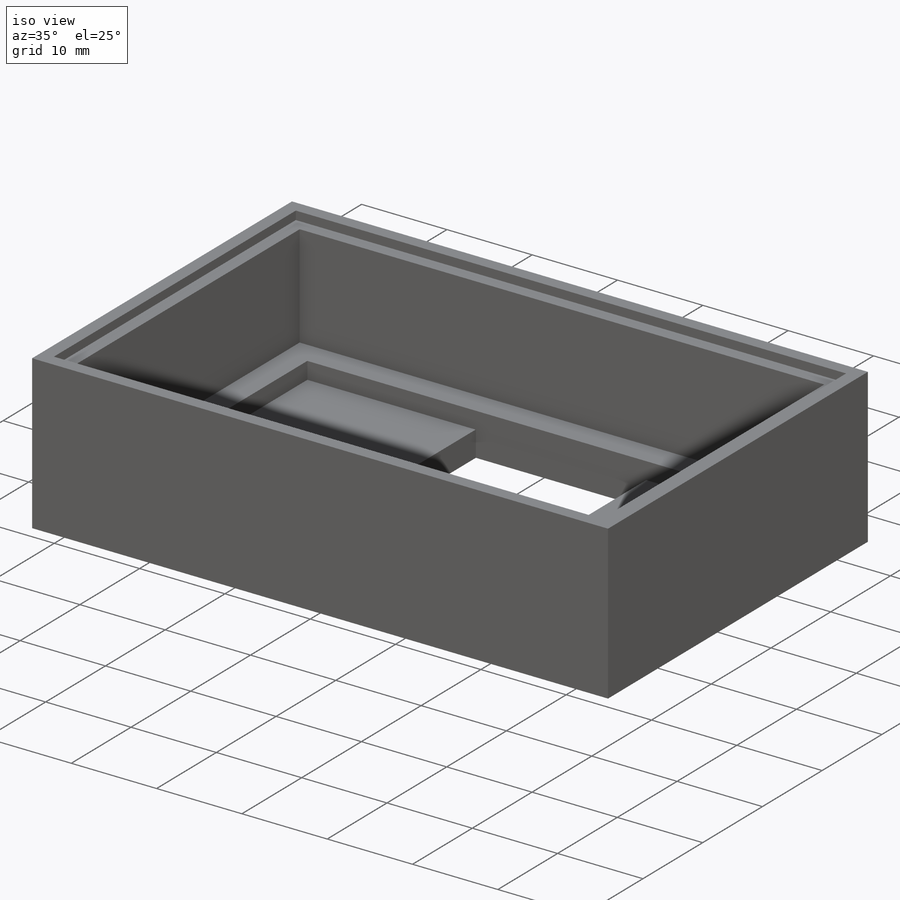
[diagram: iso view]
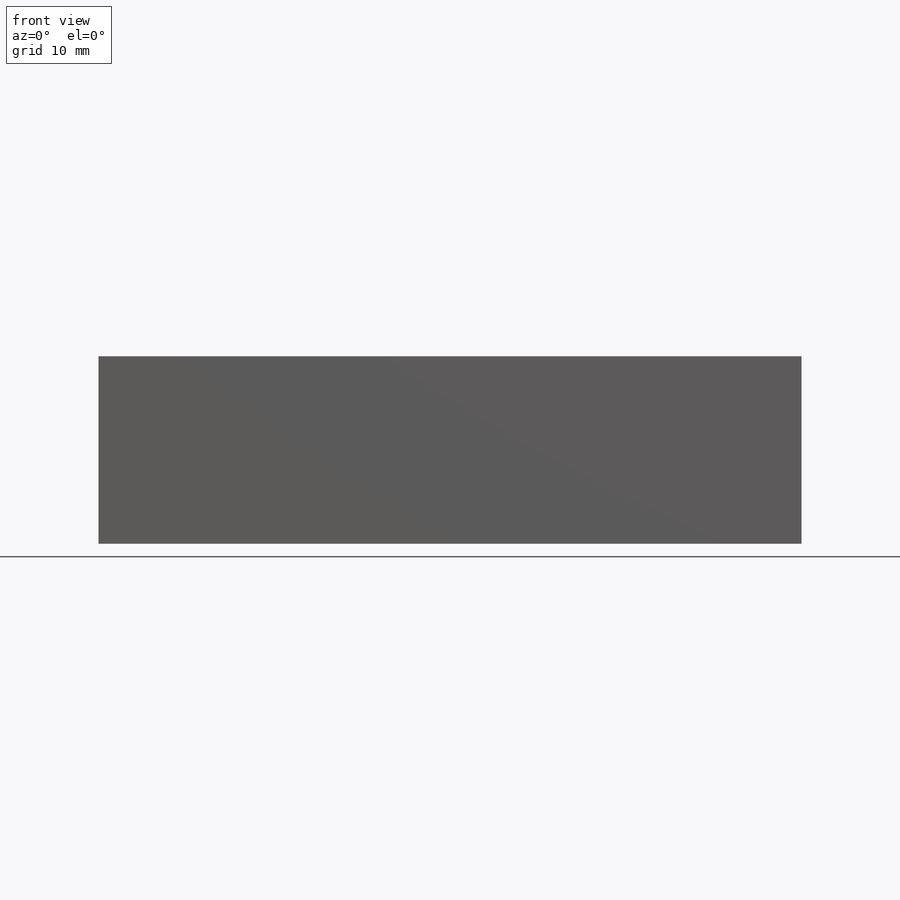
[diagram: front view]
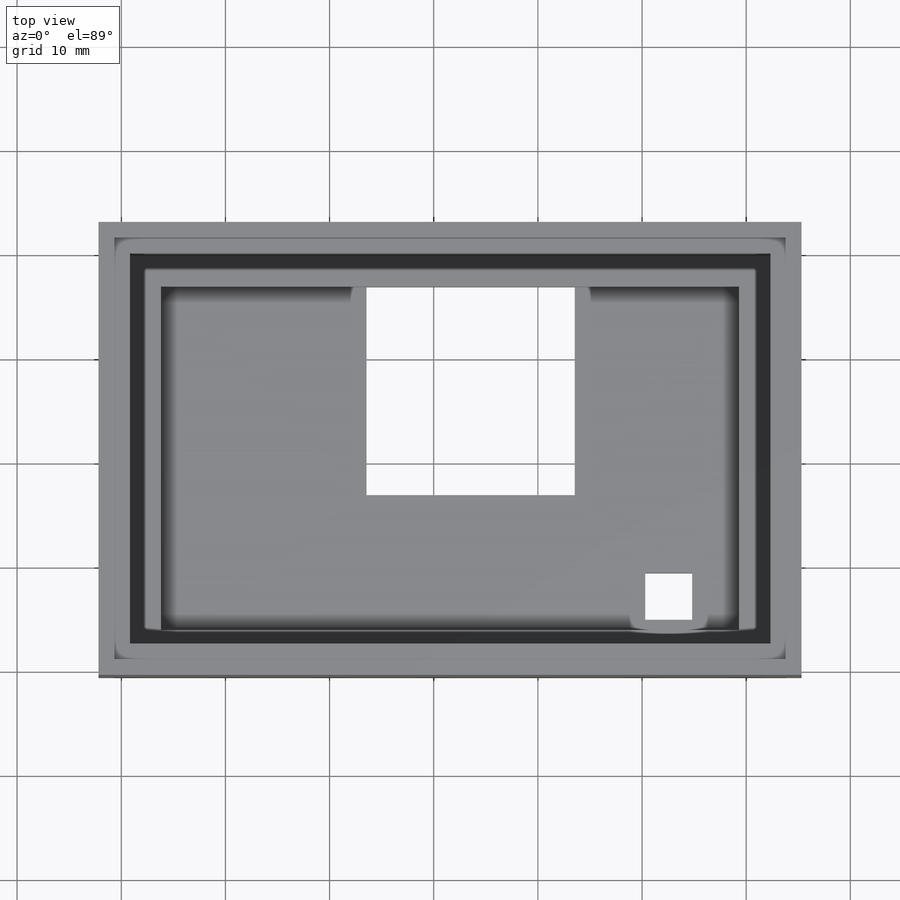
[diagram: top view]
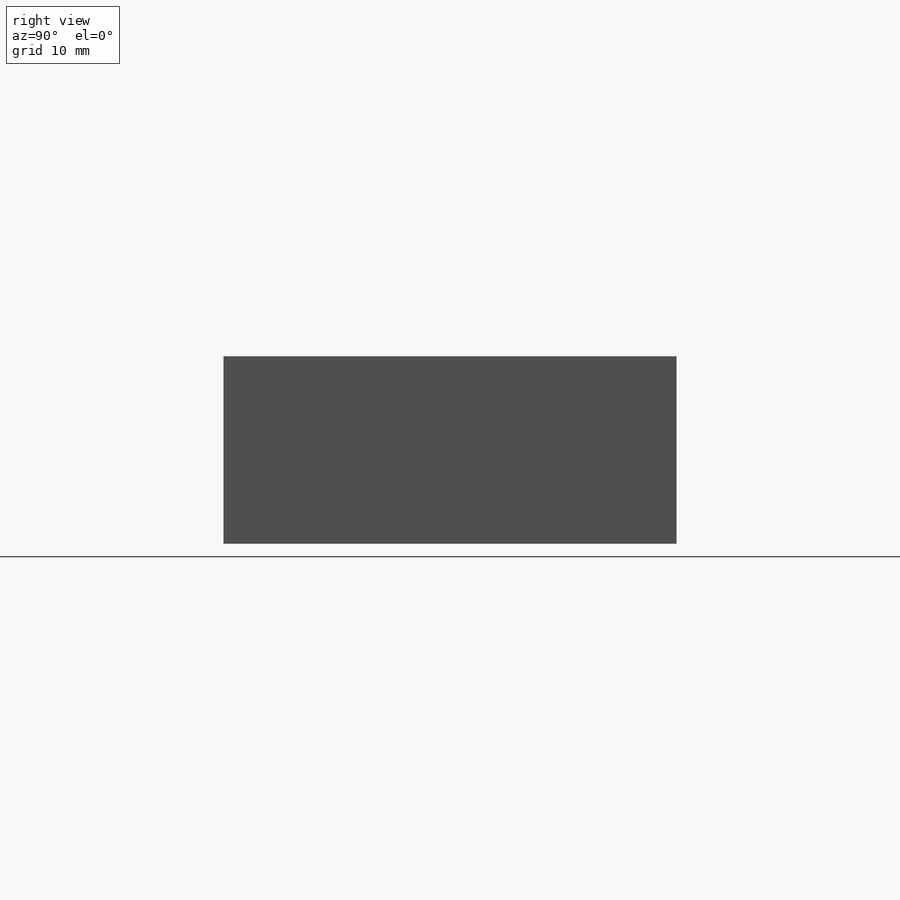
[diagram: right view]
SOLIDWORKS PART (.sldprt)
format: sldprt  version: not decoded by parser v0  size: 285,696 bytes
history: native  units: mm
features: sketch x6, plane x3, extrude x3, cut_extrude x3, material x1 (+10 scaffold rows collapsed)
feature tree (26):
  scaffold x10  (default folders/planes/origin — collapsed)
  material  "Материал <не указан>"
  plane  "Спереди"
  plane  "Сверху"
  plane  "Справа"
  sketch  "Эскиз1"  dims[c1.D1=~42.120995mm c1.D2=~78.190123mm c2.D1=25.0mm c2.D3=21.0mm c2.D2=~5.677029mm c3.D3=5.0mm c3.D2=2.0mm c4.D3=2.0mm c4.D2=1.7mm c4.D1=3.0mm c5.D2=2.0mm]
  extrude  "Бобышка-Вытянуть2"  Depth=2mm
  extrude  "Бобышка-Вытянуть3"  [1 undecoded]
  sketch  "Эскиз1<4>"  dims[D1=15.0mm]
  extrude  "Бобышка-Вытянуть4"  [1 undecoded]
  sketch  "Эскиз1<5>"  dims[D1=3.0mm]
  cut_extrude  "Вырез-Вытянуть1"  [1 undecoded]
  sketch  "Эскиз1<6>"
  sketch  "Эскиз3"  dims[D1=1.5mm]
  cut_extrude  "Вырез-Вытянуть2"  Depth=1mm
  sketch  "Эскиз4"  dims[c1.D1=20.0mm c1.D2=20.0mm c2.D1=1.0mm c2.D2=1.0mm]
  cut_extrude  "Вырез-Вытянуть4"  [1 undecoded]
decode coverage: 7 of 12 modeling features carry decoded parameters
note: ~ marks probable driven/reference dimensions
note: 4 parameter values undecoded
summary: no parameter record found for 4 features
note: suppression state not decoded; provenance and decode notes live in map.json
